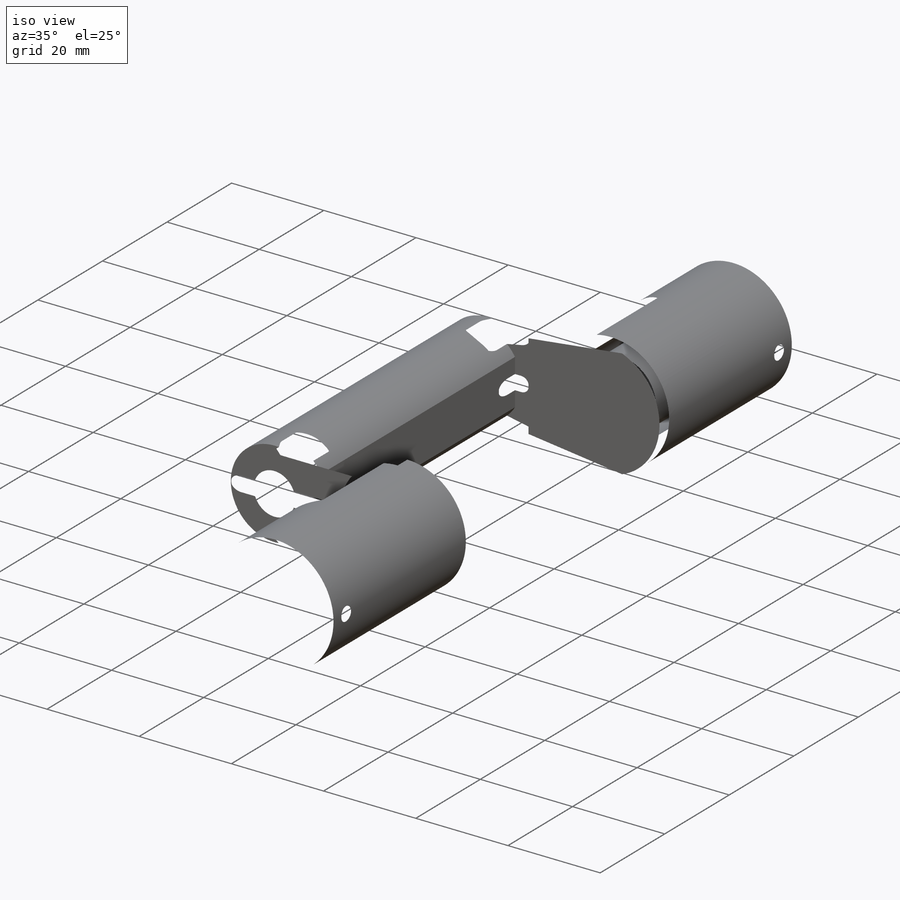
[diagram: iso view]
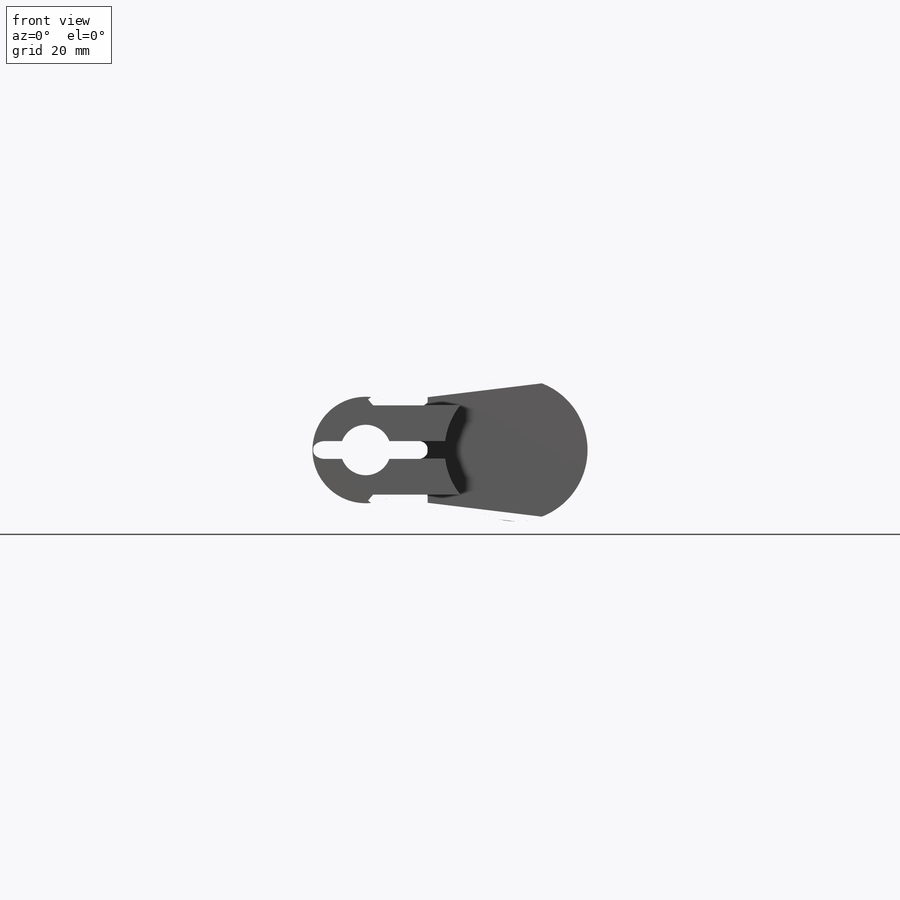
[diagram: front view]
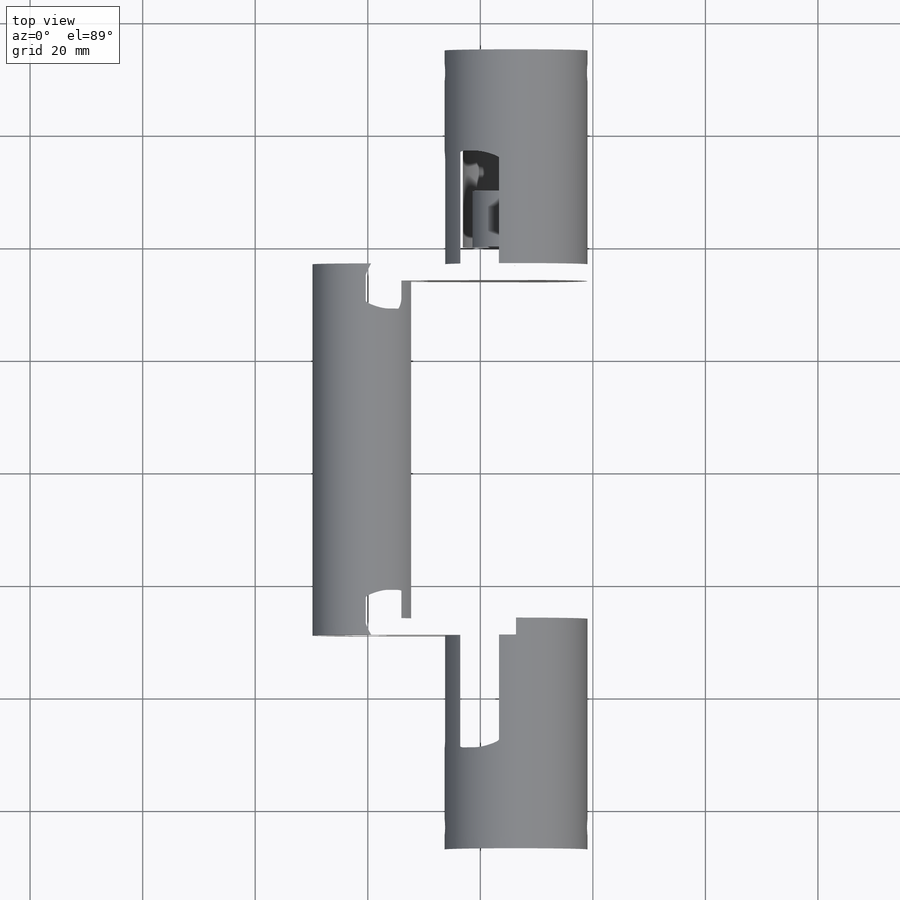
[diagram: top view]
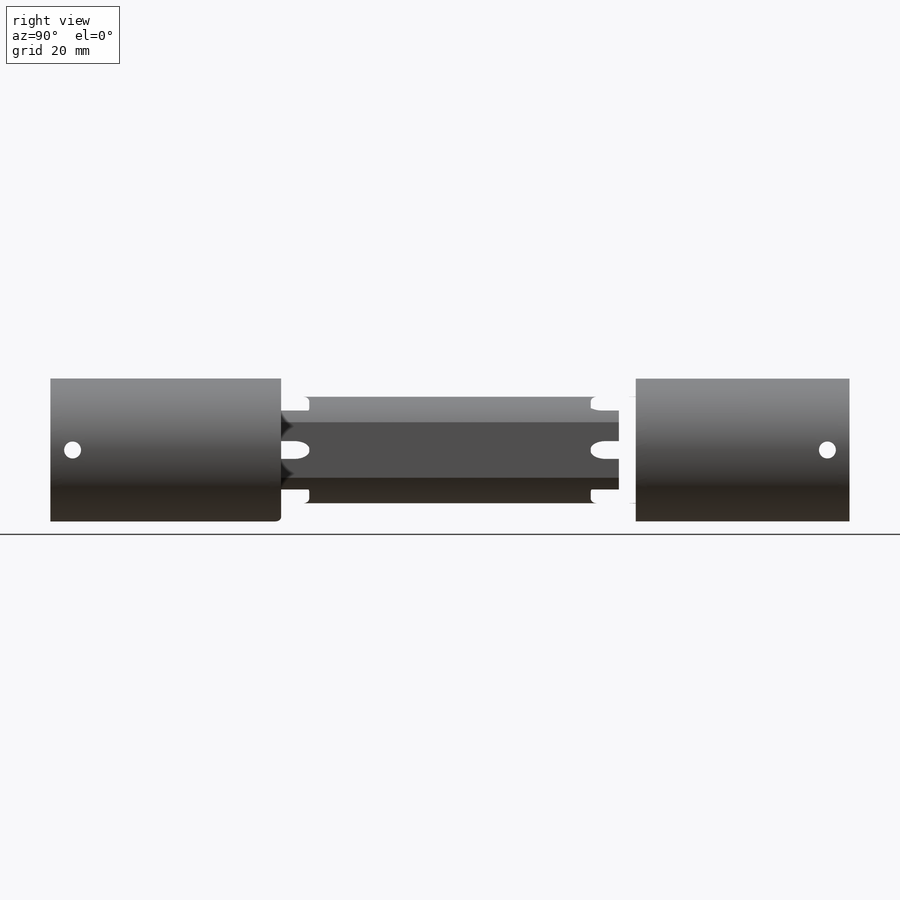
[diagram: right view]
SOLIDWORKS PART (.sldprt)
format: sldprt  version: not decoded by parser v0  size: 1,557,504 bytes
history: native  units: mm
features: sketch x26, fillet x15, cut_extrude x13, extrude x12, material x1 (+15 scaffold rows collapsed)
feature tree (82):
  scaffold x15  (default folders/planes/origin — collapsed)
  material  "Pure Gold"
  sketch  "Sketch4"  dims[c1.D20=~12.224278mm c1.D18=15.5mm c1.D26=~12.683392mm c1.D27=~12.687053mm c1.D28=~12.683392mm c1.D1=58.32mm c1.D2=31.0mm c1.D3=15.58mm c1.D4=31.0mm c1.D5=147.6375mm c1.D6=15.5mm c1.D7=15.5mm c1.D8=6.05mm c1.D9=6.05mm c1.D10=6.05mm c1.D11=6.05mm c1.D12=6.05mm c1.D13=6.05mm c1.D14=3.175mm c1.D15=3.175mm c1.D16=3.175mm c1.D17=3.175mm c2.D18=~73.931507mm c2.D19=3.175mm c2.D5=21.825mm c2.D3=25.0mm c3.D18=29.0mm c3.D20=3.175mm c3.D21=3.175mm c3.D22=46.55mm c3.D23=47.1mm c3.D24=58.32mm c3.D25=147.6375mm c3.D26=73.82mm c4.D25=147.6375mm c4.D27=64.65mm c4.D20=~178.954708deg]
  sketch  "Sketch5"  dims[D1=7.8mm]
  extrude  "Extrude1"  Depth=10mm
  sketch  "Sketch6"
  extrude  "Extrude2"  Depth=3mm
  sketch  "Sketch7"
  extrude  "Extrude3"  Depth=35mm
  sketch  "Sketch9"
  extrude  "Extrude5"  Depth=3mm
  sketch  "Sketch10"  dims[D1=8.0675mm]
  extrude  "Extrude6"  Depth=60mm
  sketch  "Sketch11"
  extrude  "Extrude7"  Depth=3mm
  sketch  "Sketch12"  dims[D1=7.8mm]
  extrude  "Extrude8"  Depth=10mm
  sketch  "Sketch13"
  extrude  "Extrude9"  Depth=38mm
  sketch  "Sketch14"
  extrude  "Extrude10"  Depth=20mm
  sketch  "Sketch17"
  extrude  "Extrude11"  Depth=20mm
  sketch  "Sketch18"  dims[D1=11.0mm]
  extrude  "Extrude12"  Depth=5mm
  sketch  "Sketch19"
  extrude  "Extrude13"  Depth=5mm
  sketch  "Sketch20"
  cut_extrude  "Extrude14"  [1 undecoded]
  sketch  "Sketch21"
  cut_extrude  "Extrude15"  [1 undecoded]
  sketch  "Sketch22"
  cut_extrude  "Extrude16"  [1 undecoded]
  sketch  "Sketch24"
  cut_extrude  "Extrude18"  [1 undecoded]
  sketch  "Sketch25"
  cut_extrude  "Extrude19"  [1 undecoded]
  sketch  "Sketch26"
  cut_extrude  "Extrude20"  [1 undecoded]
  sketch  "Sketch27"
  cut_extrude  "Extrude21"  [1 undecoded]
  sketch  "Sketch28"
  cut_extrude  "Extrude22"  [1 undecoded]
  sketch  "Sketch29"
  cut_extrude  "Extrude23"  [1 undecoded]
  sketch  "Sketch30"
  cut_extrude  "Extrude24"  Depth=10mm
  sketch  "Sketch31"
  cut_extrude  "Extrude25"  [1 undecoded]
  sketch  "Sketch32"
  cut_extrude  "Extrude26"  [1 undecoded]
  fillet  "Fillet1"  Radius=1.4mm
  fillet  "Fillet2"  Radius=1.4mm
  fillet  "Fillet3"  Radius=1.4mm
  fillet  "Fillet4"  Radius=1.4mm
  fillet  "Fillet5"  Radius=1.4mm
  fillet  "Fillet6"  Radius=1.4mm
  fillet  "Fillet7"  Radius=1.4mm
  fillet  "Fillet8"  Radius=1.4mm
  fillet  "Fillet9"  Radius=1.4mm
  fillet  "Fillet10"  Radius=1.4mm
  fillet  "Fillet11"  Radius=1.4mm
  fillet  "Fillet12"  Radius=1.4mm
  fillet  "Fillet13"  Radius=1.4mm
  fillet  "Fillet14"  Radius=1.4mm
  fillet  "Fillet15"  Radius=1.4mm
  sketch  "Sketch33"  dims[D5=1.4625mm D1=31.0625mm D2=142.0mm D3=3.9375mm D4=3.9375mm]
  cut_extrude  "Extrude27"  [1 undecoded]
decode coverage: 34 of 66 modeling features carry decoded parameters
note: ~ marks probable driven/reference dimensions
note: 12 parameter values undecoded
summary: no parameter record found for 12 features
note: suppression state not decoded; provenance and decode notes live in map.json
